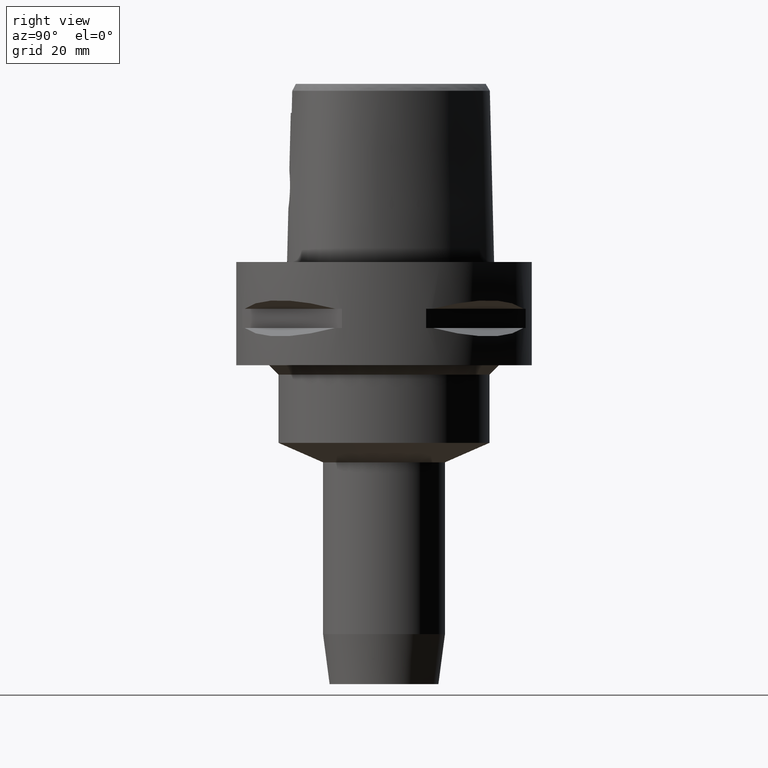
[diagram: clean part render]
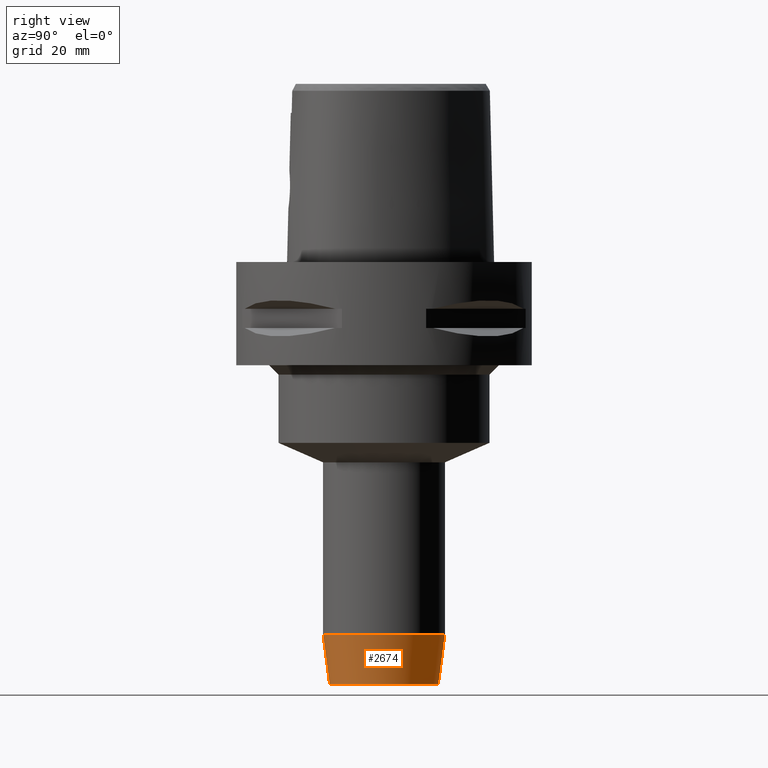
[diagram: same view with one face highlighted and labeled with its STEP entity id]
A machine part, right view. The second image highlights one B-rep face of the part: STEP entity #2674.
In plain terms, the highlighted conical surface has half-angle 7.5 deg.
Its self-contained STEP definition (entity closure, byte-faithful):
#652=DIRECTION('',(0.E0,1.305261922200E-1,-9.914448613738E-1));
#653=VECTOR('',#652,1.075646179606E1);
#654=CARTESIAN_POINT('',(0.E0,-1.3E1,-7.933556122573E1));
#655=LINE('',#654,#653);
#659=DIRECTION('',(0.E0,-1.305261922200E-1,-9.914448613738E-1));
#660=VECTOR('',#659,1.075646179606E1);
#661=CARTESIAN_POINT('',(0.E0,1.3E1,-7.933556122573E1));
#662=LINE('',#661,#660);
#666=CARTESIAN_POINT('',(0.E0,0.E0,-7.933556122573E1));
#667=DIRECTION('',(0.E0,0.E0,1.E0));
#668=DIRECTION('',(0.E0,-1.E0,0.E0));
#669=AXIS2_PLACEMENT_3D('',#666,#667,#668);
#674=CARTESIAN_POINT('',(0.E0,0.E0,-9.E1));
#675=DIRECTION('',(0.E0,0.E0,1.E0));
#676=DIRECTION('',(0.E0,-1.E0,0.E0));
#677=AXIS2_PLACEMENT_3D('',#674,#675,#676);
#1652=CARTESIAN_POINT('',(0.E0,1.3E1,-7.933556122573E1));
#1653=VERTEX_POINT('',#1652);
#1654=CARTESIAN_POINT('',(0.E0,-1.3E1,-7.933556122573E1));
#1655=VERTEX_POINT('',#1654);
#1656=CARTESIAN_POINT('',(0.E0,1.1596E1,-9.E1));
#1657=VERTEX_POINT('',#1656);
#1658=CARTESIAN_POINT('',(0.E0,-1.1596E1,-9.E1));
#1659=VERTEX_POINT('',#1658);
#2662=CARTESIAN_POINT('',(0.E0,0.E0,-8.466778061287E1));
#2663=DIRECTION('',(0.E0,0.E0,1.E0));
#2664=DIRECTION('',(0.E0,1.E0,0.E0));
#2665=AXIS2_PLACEMENT_3D('',#2662,#2663,#2664);
#2666=CONICAL_SURFACE('',#2665,1.2298E1,7.5E0);
#2667=ORIENTED_EDGE('',*,*,#2652,.T.);
#2669=ORIENTED_EDGE('',*,*,#2668,.F.);
#2670=ORIENTED_EDGE('',*,*,#2655,.F.);
#2671=ORIENTED_EDGE('',*,*,#2626,.T.);
#2672=EDGE_LOOP('',(#2667,#2669,#2670,#2671));
#2673=FACE_OUTER_BOUND('',#2672,.F.);
#670=CIRCLE('',#669,1.3E1);
#678=CIRCLE('',#677,1.1596E1);
#2626=EDGE_CURVE('',#1655,#1653,#670,.T.);
#2652=EDGE_CURVE('',#1653,#1657,#662,.T.);
#2655=EDGE_CURVE('',#1655,#1659,#655,.T.);
#2668=EDGE_CURVE('',#1659,#1657,#678,.T.);
#2674=ADVANCED_FACE('',(#2673),#2666,.T.);